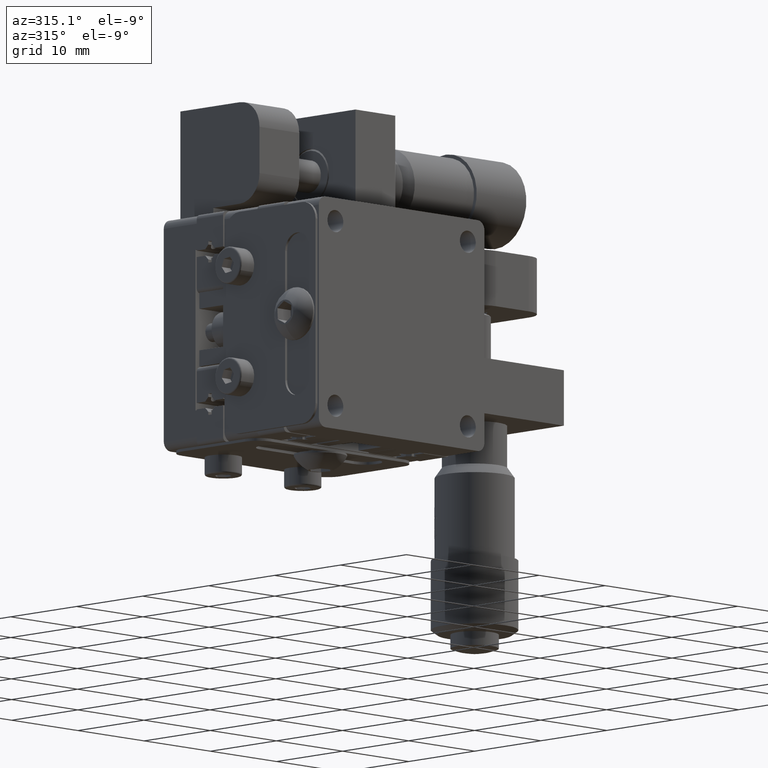
[diagram: clean part render]
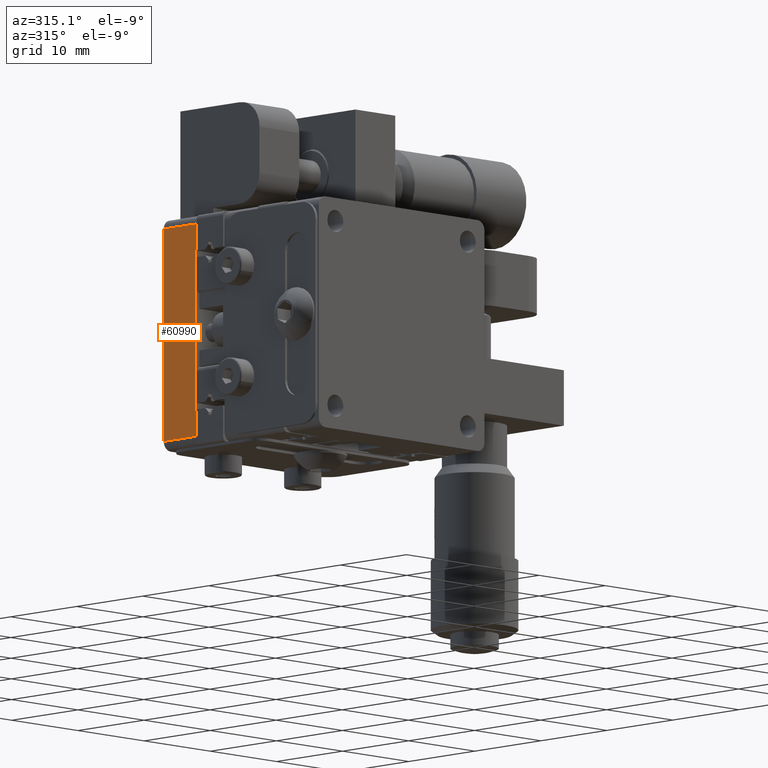
[diagram: same view with one face highlighted and labeled with its STEP entity id]
A machine part, auxiliary view. The second image highlights one B-rep face of the part: STEP entity #60990.
In plain terms, the highlighted planar face has unit normal (-1, 0, 0).
Its self-contained STEP definition (entity closure, byte-faithful):
#718 = LINE ( 'NONE', #49332, #68063 ) ;
#2691 = DIRECTION ( 'NONE',  ( -3.330669073875470100E-016, -5.856618871675882000E-016, -1.000000000000000000 ) ) ;
#2728 = CARTESIAN_POINT ( 'NONE',  ( -12.49999999999994100, 9.399999999999987900, -8.700000000000024200 ) ) ;
#5343 = DIRECTION ( 'NONE',  ( -1.266761830690952200E-015, -1.000000000000000000, 4.468840090894440300E-016 ) ) ;
#10945 = EDGE_CURVE ( 'NONE', #75606, #49758, #718, .T. ) ;
#12146 = CARTESIAN_POINT ( 'NONE',  ( -12.49999999999993400, 9.600000000000001400, 8.699999999999978000 ) ) ;
#12148 = CARTESIAN_POINT ( 'NONE',  ( -12.49999999999994100, 9.599999999999989000, -8.700000000000024200 ) ) ;
#12445 = CARTESIAN_POINT ( 'NONE',  ( -12.49999999999992700, 14.40000000000000400, 12.49999999999994800 ) ) ;
#12617 = EDGE_CURVE ( 'NONE', #95674, #75606, #52351, .T. ) ;
#15166 = VECTOR ( 'NONE', #93355, 1000.000000000000000 ) ;
#15443 = VECTOR ( 'NONE', #79367, 1000.000000000000000 ) ;
#15795 = CARTESIAN_POINT ( 'NONE',  ( -12.49999999999993400, 9.400000000000000400, 11.49999999999996800 ) ) ;
#18270 = CARTESIAN_POINT ( 'NONE',  ( -12.49999999999993400, 14.39999999999998600, -11.50000000000005200 ) ) ;
#18747 = EDGE_CURVE ( 'NONE', #77301, #19615, #75303, .T. ) ;
#19615 = VERTEX_POINT ( 'NONE', #15795 ) ;
#21261 = EDGE_CURVE ( 'NONE', #73077, #95674, #66829, .T. ) ;
#22641 = LINE ( 'NONE', #80502, #81193 ) ;
#23341 = EDGE_CURVE ( 'NONE', #83945, #49758, #22641, .T. ) ;
#28681 = EDGE_LOOP ( 'NONE', ( #69828, #54569, #40527, #34525, #73715, #32042, #36608, #79010 ) ) ;
#29129 = LINE ( 'NONE', #12148, #15166 ) ;
#30945 = CARTESIAN_POINT ( 'NONE',  ( -12.49999999999993400, 9.399999999999998600, 8.699999999999978000 ) ) ;
#31444 = EDGE_CURVE ( 'NONE', #19615, #73077, #74268, .T. ) ;
#31969 = CARTESIAN_POINT ( 'NONE',  ( -12.49999999999992700, 14.40000000000000000, 11.49999999999994800 ) ) ;
#32042 = ORIENTED_EDGE ( 'NONE', *, *, #21261, .T. ) ;
#32575 = VECTOR ( 'NONE', #5343, 1000.000000000000000 ) ;
#34525 = ORIENTED_EDGE ( 'NONE', *, *, #18747, .T. ) ;
#36447 = CARTESIAN_POINT ( 'NONE',  ( -12.49999999999993400, 11.89999999999999100, -2.923009057020920600E-014 ) ) ;
#36608 = ORIENTED_EDGE ( 'NONE', *, *, #12617, .T. ) ;
#38916 = CARTESIAN_POINT ( 'NONE',  ( -12.49999999999993400, 9.400000000000002100, 12.49999999999997000 ) ) ;
#39722 = DIRECTION ( 'NONE',  ( 1.266761830690952200E-015, 1.000000000000000000, -4.468840090894440300E-016 ) ) ;
#40516 = VECTOR ( 'NONE', #76155, 1000.000000000000000 ) ;
#40527 = ORIENTED_EDGE ( 'NONE', *, *, #84704, .T. ) ;
#47128 = VECTOR ( 'NONE', #2691, 1000.000000000000000 ) ;
#49332 = CARTESIAN_POINT ( 'NONE',  ( -12.49999999999993400, 9.400000000000002100, 12.49999999999997000 ) ) ;
#49758 = VERTEX_POINT ( 'NONE', #2728 ) ;
#52022 = CARTESIAN_POINT ( 'NONE',  ( -12.49999999999992700, 14.40000000000000000, 11.49999999999994800 ) ) ;
#52351 = LINE ( 'NONE', #94010, #32575 ) ;
#54111 = VERTEX_POINT ( 'NONE', #12146 ) ;
#54569 = ORIENTED_EDGE ( 'NONE', *, *, #70950, .F. ) ;
#60990 = ADVANCED_FACE ( 'NONE', ( #61081 ), #95746, .T. ) ;
#61081 = FACE_OUTER_BOUND ( 'NONE', #28681, .T. ) ;
#65916 = CARTESIAN_POINT ( 'NONE',  ( -12.49999999999994100, 9.599999999999989000, -8.700000000000024200 ) ) ;
#66829 = LINE ( 'NONE', #12445, #47128 ) ;
#68063 = VECTOR ( 'NONE', #87280, 1000.000000000000000 ) ;
#69554 = VECTOR ( 'NONE', #39722, 1000.000000000000000 ) ;
#69828 = ORIENTED_EDGE ( 'NONE', *, *, #23341, .F. ) ;
#70950 = EDGE_CURVE ( 'NONE', #54111, #83945, #29129, .T. ) ;
#72991 = DIRECTION ( 'NONE',  ( 3.330669073875468100E-016, 4.468840090894436400E-016, 1.000000000000000000 ) ) ;
#73077 = VERTEX_POINT ( 'NONE', #52022 ) ;
#73319 = DIRECTION ( 'NONE',  ( -1.000000000000000000, 1.266761830690952400E-015, 3.330669073875462700E-016 ) ) ;
#73715 = ORIENTED_EDGE ( 'NONE', *, *, #31444, .T. ) ;
#74268 = LINE ( 'NONE', #31969, #69554 ) ;
#75303 = LINE ( 'NONE', #38916, #40516 ) ;
#75606 = VERTEX_POINT ( 'NONE', #85309 ) ;
#76155 = DIRECTION ( 'NONE',  ( 3.330669073875470100E-016, 5.856618871675882000E-016, 1.000000000000000000 ) ) ;
#77301 = VERTEX_POINT ( 'NONE', #30945 ) ;
#79010 = ORIENTED_EDGE ( 'NONE', *, *, #10945, .T. ) ;
#79300 = LINE ( 'NONE', #79699, #15443 ) ;
#79367 = DIRECTION ( 'NONE',  ( -1.266761830690952200E-015, -1.000000000000000000, 5.856618871675886000E-016 ) ) ;
#79699 = CARTESIAN_POINT ( 'NONE',  ( -12.49999999999993400, 9.600000000000001400, 8.699999999999978000 ) ) ;
#80502 = CARTESIAN_POINT ( 'NONE',  ( -12.49999999999994100, 9.599999999999989000, -8.700000000000024200 ) ) ;
#81193 = VECTOR ( 'NONE', #88659, 1000.000000000000000 ) ;
#82828 = AXIS2_PLACEMENT_3D ( 'NONE', #36447, #73319, #72991 ) ;
#83945 = VERTEX_POINT ( 'NONE', #65916 ) ;
#84704 = EDGE_CURVE ( 'NONE', #54111, #77301, #79300, .T. ) ;
#85309 = CARTESIAN_POINT ( 'NONE',  ( -12.49999999999994100, 9.399999999999986100, -11.50000000000003000 ) ) ;
#87280 = DIRECTION ( 'NONE',  ( 3.330669073875470100E-016, 5.856618871675882000E-016, 1.000000000000000000 ) ) ;
#88659 = DIRECTION ( 'NONE',  ( -1.266761830690952200E-015, -1.000000000000000000, 5.856618871675886000E-016 ) ) ;
#93355 = DIRECTION ( 'NONE',  ( -3.330669073875470100E-016, -5.964291363288235400E-016, -1.000000000000000000 ) ) ;
#94010 = CARTESIAN_POINT ( 'NONE',  ( -12.49999999999994100, 9.399999999999986100, -11.50000000000003000 ) ) ;
#95674 = VERTEX_POINT ( 'NONE', #18270 ) ;
#95746 = PLANE ( 'NONE',  #82828 ) ;